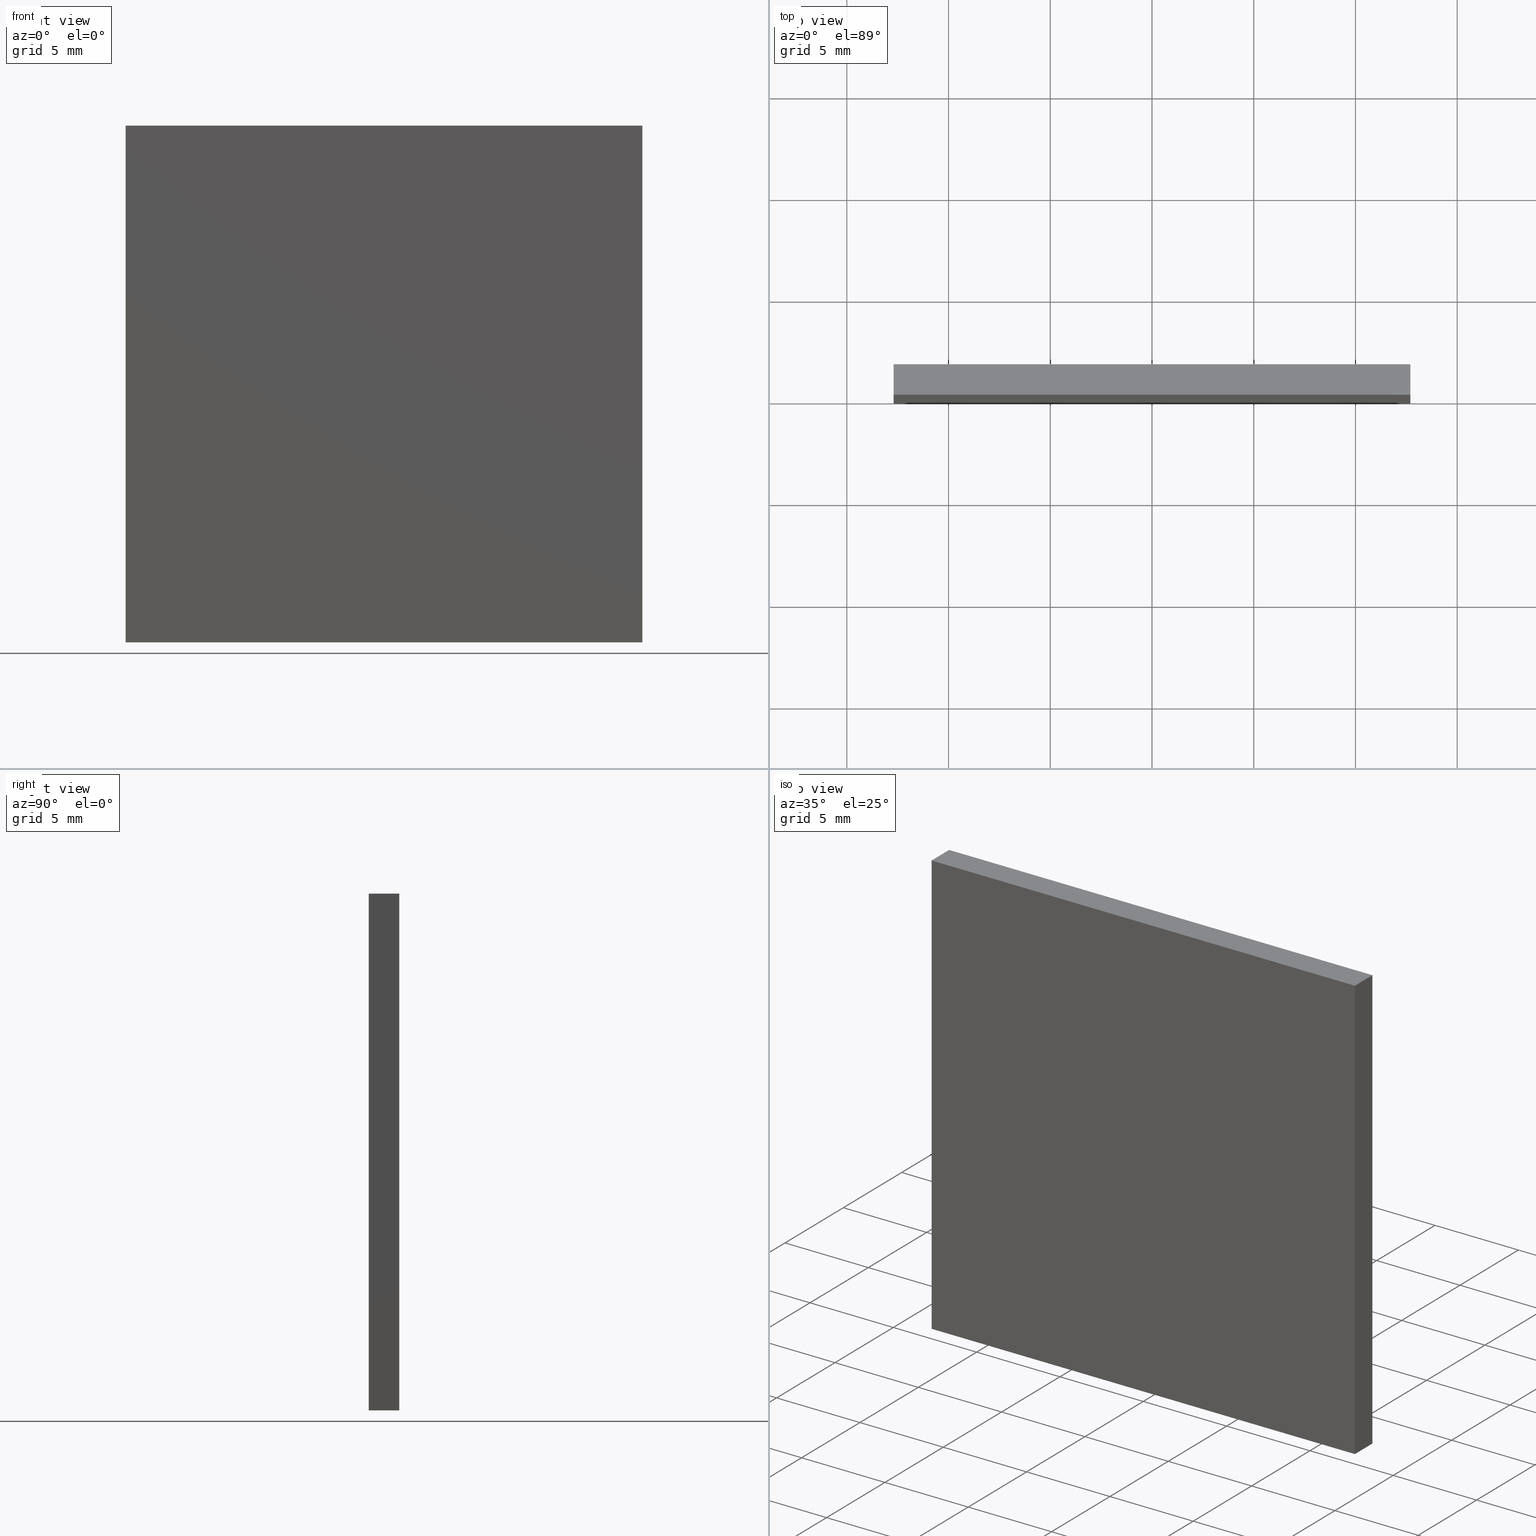
[diagram: canonical four-view strip — front | top / right | iso, engineering-drawing reading convention]
A machine part, canonical four-view strip (front | top / right | iso — engineering-drawing reading convention). The complete STEP part file that produces these views, byte-faithful:
ISO-10303-21;
HEADER;
FILE_DESCRIPTION (( 'STEP AP214' ),
    '1' );
FILE_NAME ('350503.STEP',
    '2019-08-14T06:00:49',
    ( 'user' ),
    ( '΢���й�' ),
    'SwSTEP 2.0',
    'SolidWorks 2016',
    '' );
FILE_SCHEMA (( 'AUTOMOTIVE_DESIGN' ));
ENDSEC;

DATA;
#1 = CARTESIAN_POINT ( 'NONE',  ( -12.70000000000000100, 0.0000000000000000000, -12.69999999999999800 ) ) ;
#2 = CARTESIAN_POINT ( 'NONE',  ( 0.0000000000000000000, 1.500000000000000000, 0.0000000000000000000 ) ) ;
#3 = ORIENTED_EDGE ( 'NONE', *, *, #194, .F. ) ;
#4 = CARTESIAN_POINT ( 'NONE',  ( -12.70000000000000100, 1.500000000000000000, 12.69999999999999900 ) ) ;
#5 = ORIENTED_EDGE ( 'NONE', *, *, #194, .T. ) ;
#6 = VERTEX_POINT ( 'NONE', #64 ) ;
#7 = LINE ( 'NONE', #185, #176 ) ;
#8 = MECHANICAL_DESIGN_GEOMETRIC_PRESENTATION_REPRESENTATION (  '', ( #195 ), #20 ) ;
#9 = PRODUCT_DEFINITION ( 'δ֪', '', #22, #43 ) ;
#10 = EDGE_LOOP ( 'NONE', ( #178, #179, #180, #52 ) ) ;
#11 = VERTEX_POINT ( 'NONE', #111 ) ;
#12 = CARTESIAN_POINT ( 'NONE',  ( 12.69999999999999800, 0.0000000000000000000, 12.69999999999999900 ) ) ;
#13 = EDGE_CURVE ( 'NONE', #11, #41, #93, .T. ) ;
#14 = PRODUCT_CONTEXT ( 'NONE', #34, 'mechanical' ) ;
#15 = PRESENTATION_STYLE_ASSIGNMENT (( #85 ) ) ;
#16 =( NAMED_UNIT ( * ) SI_UNIT ( $, .STERADIAN. ) SOLID_ANGLE_UNIT ( ) );
#17 = LINE ( 'NONE', #21, #79 ) ;
#18 = DIRECTION ( 'NONE',  ( -1.000000000000000000, -0.0000000000000000000, -0.0000000000000000000 ) ) ;
#19 = CARTESIAN_POINT ( 'NONE',  ( -12.70000000000000100, 1.500000000000000000, -12.69999999999999800 ) ) ;
#20 =( GEOMETRIC_REPRESENTATION_CONTEXT ( 3 ) GLOBAL_UNCERTAINTY_ASSIGNED_CONTEXT ( ( #196 ) ) GLOBAL_UNIT_ASSIGNED_CONTEXT ( ( #182, #73, #162 ) ) REPRESENTATION_CONTEXT ( 'NONE', 'WORKASPACE' ) );
#21 = CARTESIAN_POINT ( 'NONE',  ( 12.69999999999999800, 1.500000000000000000, -12.69999999999999800 ) ) ;
#22 = PRODUCT_DEFINITION_FORMATION_WITH_SPECIFIED_SOURCE ( '�κ�', '', #115, .NOT_KNOWN. ) ;
#23 = COLOUR_RGB ( '',1.000000000000000000, 1.000000000000000000, 1.000000000000000000 ) ;
#24 = FACE_OUTER_BOUND ( 'NONE', #193, .T. ) ;
#25 = LINE ( 'NONE', #67, #28 ) ;
#26 = ADVANCED_FACE ( 'NONE', ( #101 ), #49, .F. ) ;
#27 = CARTESIAN_POINT ( 'NONE',  ( 12.69999999999999800, 1.500000000000000000, -12.69999999999999800 ) ) ;
#28 = VECTOR ( 'NONE', #157, 1000.000000000000000 ) ;
#29 = PLANE ( 'NONE',  #70 ) ;
#30 = DIRECTION ( 'NONE',  ( 0.0000000000000000000, 0.0000000000000000000, -1.000000000000000000 ) ) ;
#31 = MANIFOLD_SOLID_BREP ( '͹̨-����1', #42 ) ;
#32 = PRODUCT_RELATED_PRODUCT_CATEGORY ( 'part', '', ( #115 ) ) ;
#33 = EDGE_LOOP ( 'NONE', ( #142, #197, #121, #202 ) ) ;
#34 = APPLICATION_CONTEXT ( 'automotive_design' ) ;
#35 = VERTEX_POINT ( 'NONE', #47 ) ;
#36 = VECTOR ( 'NONE', #150, 1000.000000000000000 ) ;
#37 = APPLICATION_CONTEXT ( 'automotive_design' ) ;
#38 = VECTOR ( 'NONE', #18, 1000.000000000000000 ) ;
#39 = EDGE_CURVE ( 'NONE', #35, #6, #109, .T. ) ;
#40 = DIRECTION ( 'NONE',  ( 0.0000000000000000000, 0.0000000000000000000, -1.000000000000000000 ) ) ;
#41 = VERTEX_POINT ( 'NONE', #27 ) ;
#42 = CLOSED_SHELL ( 'NONE', ( #26, #107, #81, #58, #175, #68 ) ) ;
#43 = PRODUCT_DEFINITION_CONTEXT ( 'detailed design', #37, 'design' ) ;
#44 = ORIENTED_EDGE ( 'NONE', *, *, #105, .F. ) ;
#45 = VERTEX_POINT ( 'NONE', #145 ) ;
#46 = DIRECTION ( 'NONE',  ( -1.000000000000000000, 0.0000000000000000000, -0.0000000000000000000 ) ) ;
#47 = CARTESIAN_POINT ( 'NONE',  ( 12.69999999999999800, 0.0000000000000000000, 12.69999999999999900 ) ) ;
#48 = PLANE ( 'NONE',  #84 ) ;
#49 = PLANE ( 'NONE',  #184 ) ;
#50 = ADVANCED_BREP_SHAPE_REPRESENTATION ( '350503', ( #31, #201 ), #110 ) ;
#51 = EDGE_CURVE ( 'NONE', #132, #200, #86, .T. ) ;
#52 = ORIENTED_EDGE ( 'NONE', *, *, #191, .T. ) ;
#53 = APPLICATION_PROTOCOL_DEFINITION ( 'draft international standard', 'automotive_design', 1998, #34 ) ;
#54 = SURFACE_STYLE_FILL_AREA ( #186 ) ;
#55 = DIRECTION ( 'NONE',  ( 0.0000000000000000000, -0.0000000000000000000, -1.000000000000000000 ) ) ;
#56 = DIRECTION ( 'NONE',  ( -0.0000000000000000000, -1.000000000000000000, -0.0000000000000000000 ) ) ;
#57 = AXIS2_PLACEMENT_3D ( 'NONE', #82, #143, #46 ) ;
#58 = ADVANCED_FACE ( 'NONE', ( #159 ), #94, .F. ) ;
#59 = SURFACE_STYLE_FILL_AREA ( #96 ) ;
#60 = LINE ( 'NONE', #102, #38 ) ;
#61 = DIRECTION ( 'NONE',  ( 0.0000000000000000000, 0.0000000000000000000, 1.000000000000000000 ) ) ;
#62 = CARTESIAN_POINT ( 'NONE',  ( 0.0000000000000000000, 0.0000000000000000000, 0.0000000000000000000 ) ) ;
#63 = ORIENTED_EDGE ( 'NONE', *, *, #156, .F. ) ;
#64 = CARTESIAN_POINT ( 'NONE',  ( 12.69999999999999800, 0.0000000000000000000, -12.69999999999999800 ) ) ;
#65 = ORIENTED_EDGE ( 'NONE', *, *, #92, .F. ) ;
#66 = DIRECTION ( 'NONE',  ( 0.0000000000000000000, -1.000000000000000000, 0.0000000000000000000 ) ) ;
#67 = CARTESIAN_POINT ( 'NONE',  ( -12.70000000000000100, 1.500000000000000000, -12.69999999999999800 ) ) ;
#68 = ADVANCED_FACE ( 'NONE', ( #155 ), #29, .T. ) ;
#69 = FACE_OUTER_BOUND ( 'NONE', #161, .T. ) ;
#70 = AXIS2_PLACEMENT_3D ( 'NONE', #62, #160, #124 ) ;
#71 = ORIENTED_EDGE ( 'NONE', *, *, #128, .T. ) ;
#72 = DIRECTION ( 'NONE',  ( -0.0000000000000000000, -1.000000000000000000, -0.0000000000000000000 ) ) ;
#73 =( NAMED_UNIT ( * ) PLANE_ANGLE_UNIT ( ) SI_UNIT ( $, .RADIAN. ) );
#74 = CARTESIAN_POINT ( 'NONE',  ( -12.70000000000000100, 1.500000000000000000, -12.69999999999999800 ) ) ;
#75 = DIRECTION ( 'NONE',  ( 0.0000000000000000000, 0.0000000000000000000, 1.000000000000000000 ) ) ;
#76 = ORIENTED_EDGE ( 'NONE', *, *, #147, .T. ) ;
#77 = PLANE ( 'NONE',  #120 ) ;
#78 = ORIENTED_EDGE ( 'NONE', *, *, #191, .F. ) ;
#79 = VECTOR ( 'NONE', #56, 1000.000000000000000 ) ;
#80 = EDGE_CURVE ( 'NONE', #11, #35, #144, .T. ) ;
#81 = ADVANCED_FACE ( 'NONE', ( #69 ), #48, .F. ) ;
#82 = CARTESIAN_POINT ( 'NONE',  ( -12.70000000000000100, 1.500000000000000000, 12.69999999999999900 ) ) ;
#83 = SURFACE_STYLE_USAGE ( .BOTH. , #199 ) ;
#84 = AXIS2_PLACEMENT_3D ( 'NONE', #146, #163, #40 ) ;
#85 = SURFACE_STYLE_USAGE ( .BOTH. , #99 ) ;
#86 = LINE ( 'NONE', #123, #183 ) ;
#87 = EDGE_CURVE ( 'NONE', #132, #45, #190, .T. ) ;
#88 = DIRECTION ( 'NONE',  ( -0.0000000000000000000, -0.0000000000000000000, 1.000000000000000000 ) ) ;
#89 = ORIENTED_EDGE ( 'NONE', *, *, #87, .T. ) ;
#90 = LINE ( 'NONE', #113, #125 ) ;
#91 = VECTOR ( 'NONE', #127, 1000.000000000000000 ) ;
#92 = EDGE_CURVE ( 'NONE', #200, #141, #104, .T. ) ;
#93 = LINE ( 'NONE', #97, #126 ) ;
#94 = PLANE ( 'NONE',  #57 ) ;
#95 = LINE ( 'NONE', #133, #135 ) ;
#96 = FILL_AREA_STYLE ('',( #138 ) ) ;
#97 = CARTESIAN_POINT ( 'NONE',  ( 12.69999999999999800, 1.500000000000000000, 12.69999999999999900 ) ) ;
#98 = DIRECTION ( 'NONE',  ( 1.000000000000000000, 0.0000000000000000000, 0.0000000000000000000 ) ) ;
#99 = SURFACE_SIDE_STYLE ('',( #54 ) ) ;
#100 =( LENGTH_UNIT ( ) NAMED_UNIT ( * ) SI_UNIT ( .MILLI., .METRE. ) );
#101 = FACE_OUTER_BOUND ( 'NONE', #33, .T. ) ;
#102 = CARTESIAN_POINT ( 'NONE',  ( -12.70000000000000100, 0.0000000000000000000, -12.69999999999999800 ) ) ;
#103 = DIRECTION ( 'NONE',  ( 1.000000000000000000, 0.0000000000000000000, 0.0000000000000000000 ) ) ;
#104 = LINE ( 'NONE', #116, #36 ) ;
#105 = EDGE_CURVE ( 'NONE', #41, #132, #25, .T. ) ;
#106 = AXIS2_PLACEMENT_3D ( 'NONE', #74, #61, #139 ) ;
#107 = ADVANCED_FACE ( 'NONE', ( #168 ), #174, .F. ) ;
#108 = DIRECTION ( 'NONE',  ( 0.0000000000000000000, 0.0000000000000000000, -1.000000000000000000 ) ) ;
#109 = LINE ( 'NONE', #12, #117 ) ;
#110 =( GEOMETRIC_REPRESENTATION_CONTEXT ( 3 ) GLOBAL_UNCERTAINTY_ASSIGNED_CONTEXT ( ( #173 ) ) GLOBAL_UNIT_ASSIGNED_CONTEXT ( ( #153, #167, #16 ) ) REPRESENTATION_CONTEXT ( 'NONE', 'WORKASPACE' ) );
#111 = CARTESIAN_POINT ( 'NONE',  ( 12.69999999999999800, 1.500000000000000000, 12.69999999999999900 ) ) ;
#112 = ORIENTED_EDGE ( 'NONE', *, *, #87, .F. ) ;
#113 = CARTESIAN_POINT ( 'NONE',  ( -12.70000000000000100, 0.0000000000000000000, 12.69999999999999900 ) ) ;
#114 = DIRECTION ( 'NONE',  ( -1.000000000000000000, 0.0000000000000000000, 0.0000000000000000000 ) ) ;
#115 = PRODUCT ( '350503', '350503', '', ( #14 ) ) ;
#116 = CARTESIAN_POINT ( 'NONE',  ( -12.70000000000000100, 0.0000000000000000000, 12.69999999999999900 ) ) ;
#117 = VECTOR ( 'NONE', #108, 1000.000000000000000 ) ;
#118 = PRESENTATION_STYLE_ASSIGNMENT (( #83 ) ) ;
#119 = PRESENTATION_LAYER_ASSIGNMENT (  '', '', ( #195 ) ) ;
#120 = AXIS2_PLACEMENT_3D ( 'NONE', #2, #66, #55 ) ;
#121 = ORIENTED_EDGE ( 'NONE', *, *, #13, .F. ) ;
#122 = ORIENTED_EDGE ( 'NONE', *, *, #51, .T. ) ;
#123 = CARTESIAN_POINT ( 'NONE',  ( -12.70000000000000100, 1.500000000000000000, -12.69999999999999800 ) ) ;
#124 = DIRECTION ( 'NONE',  ( 0.0000000000000000000, -0.0000000000000000000, -1.000000000000000000 ) ) ;
#125 = VECTOR ( 'NONE', #189, 1000.000000000000000 ) ;
#126 = VECTOR ( 'NONE', #30, 1000.000000000000000 ) ;
#127 = DIRECTION ( 'NONE',  ( -0.0000000000000000000, -1.000000000000000000, -0.0000000000000000000 ) ) ;
#128 = EDGE_CURVE ( 'NONE', #41, #6, #17, .T. ) ;
#129 = UNCERTAINTY_MEASURE_WITH_UNIT (LENGTH_MEASURE( 1.000000000000000100E-005 ), #100, 'distance_accuracy_value', 'NONE');
#130 = ORIENTED_EDGE ( 'NONE', *, *, #13, .T. ) ;
#131 = CARTESIAN_POINT ( 'NONE',  ( 12.69999999999999800, 1.500000000000000000, 12.69999999999999900 ) ) ;
#132 = VERTEX_POINT ( 'NONE', #19 ) ;
#133 = CARTESIAN_POINT ( 'NONE',  ( -12.70000000000000100, 1.500000000000000000, 12.69999999999999900 ) ) ;
#134 = CARTESIAN_POINT ( 'NONE',  ( -12.70000000000000100, 0.0000000000000000000, 12.69999999999999900 ) ) ;
#135 = VECTOR ( 'NONE', #170, 1000.000000000000000 ) ;
#136 = VECTOR ( 'NONE', #88, 1000.000000000000000 ) ;
#137 = APPLICATION_PROTOCOL_DEFINITION ( 'draft international standard', 'automotive_design', 1998, #37 ) ;
#138 = FILL_AREA_STYLE_COLOUR ( '', #172 ) ;
#139 = DIRECTION ( 'NONE',  ( 1.000000000000000000, 0.0000000000000000000, -0.0000000000000000000 ) ) ;
#140 = PRESENTATION_LAYER_ASSIGNMENT (  '', '', ( #149 ) ) ;
#141 = VERTEX_POINT ( 'NONE', #134 ) ;
#142 = ORIENTED_EDGE ( 'NONE', *, *, #39, .T. ) ;
#143 = DIRECTION ( 'NONE',  ( 0.0000000000000000000, 0.0000000000000000000, -1.000000000000000000 ) ) ;
#144 = LINE ( 'NONE', #181, #91 ) ;
#145 = CARTESIAN_POINT ( 'NONE',  ( -12.70000000000000100, 1.500000000000000000, 12.69999999999999900 ) ) ;
#146 = CARTESIAN_POINT ( 'NONE',  ( -12.70000000000000100, 1.500000000000000000, 12.69999999999999900 ) ) ;
#147 = EDGE_CURVE ( 'NONE', #45, #11, #7, .T. ) ;
#148 = PRODUCT_DEFINITION_SHAPE ( 'NONE', 'NONE',  #9 ) ;
#149 = STYLED_ITEM ( 'NONE', ( #15 ), #50 ) ;
#150 = DIRECTION ( 'NONE',  ( -0.0000000000000000000, -0.0000000000000000000, 1.000000000000000000 ) ) ;
#151 = ORIENTED_EDGE ( 'NONE', *, *, #92, .T. ) ;
#152 =( NAMED_UNIT ( * ) PLANE_ANGLE_UNIT ( ) SI_UNIT ( $, .RADIAN. ) );
#153 =( LENGTH_UNIT ( ) NAMED_UNIT ( * ) SI_UNIT ( .MILLI., .METRE. ) );
#154 = FILL_AREA_STYLE_COLOUR ( '', #23 ) ;
#155 = FACE_OUTER_BOUND ( 'NONE', #177, .T. ) ;
#156 = EDGE_CURVE ( 'NONE', #141, #35, #90, .T. ) ;
#157 = DIRECTION ( 'NONE',  ( -1.000000000000000000, -0.0000000000000000000, -0.0000000000000000000 ) ) ;
#158 = MECHANICAL_DESIGN_GEOMETRIC_PRESENTATION_REPRESENTATION (  '', ( #149 ), #164 ) ;
#159 = FACE_OUTER_BOUND ( 'NONE', #10, .T. ) ;
#160 = DIRECTION ( 'NONE',  ( 0.0000000000000000000, -1.000000000000000000, 0.0000000000000000000 ) ) ;
#161 = EDGE_LOOP ( 'NONE', ( #151, #78, #112, #122 ) ) ;
#162 =( NAMED_UNIT ( * ) SI_UNIT ( $, .STERADIAN. ) SOLID_ANGLE_UNIT ( ) );
#163 = DIRECTION ( 'NONE',  ( 1.000000000000000000, -0.0000000000000000000, 0.0000000000000000000 ) ) ;
#164 =( GEOMETRIC_REPRESENTATION_CONTEXT ( 3 ) GLOBAL_UNCERTAINTY_ASSIGNED_CONTEXT ( ( #129 ) ) GLOBAL_UNIT_ASSIGNED_CONTEXT ( ( #100, #152, #187 ) ) REPRESENTATION_CONTEXT ( 'NONE', 'WORKASPACE' ) );
#165 = ORIENTED_EDGE ( 'NONE', *, *, #51, .F. ) ;
#166 = CARTESIAN_POINT ( 'NONE',  ( 0.0000000000000000000, 0.0000000000000000000, 0.0000000000000000000 ) ) ;
#167 =( NAMED_UNIT ( * ) PLANE_ANGLE_UNIT ( ) SI_UNIT ( $, .RADIAN. ) );
#168 = FACE_OUTER_BOUND ( 'NONE', #169, .T. ) ;
#169 = EDGE_LOOP ( 'NONE', ( #5, #165, #44, #71 ) ) ;
#170 = DIRECTION ( 'NONE',  ( -0.0000000000000000000, -1.000000000000000000, -0.0000000000000000000 ) ) ;
#171 = SHAPE_DEFINITION_REPRESENTATION ( #148, #50 ) ;
#172 = COLOUR_RGB ( '',1.000000000000000000, 1.000000000000000000, 1.000000000000000000 ) ;
#173 = UNCERTAINTY_MEASURE_WITH_UNIT (LENGTH_MEASURE( 1.000000000000000100E-005 ), #153, 'distance_accuracy_value', 'NONE');
#174 = PLANE ( 'NONE',  #106 ) ;
#175 = ADVANCED_FACE ( 'NONE', ( #24 ), #77, .F. ) ;
#176 = VECTOR ( 'NONE', #103, 1000.000000000000000 ) ;
#177 = EDGE_LOOP ( 'NONE', ( #188, #63, #65, #3 ) ) ;
#178 = ORIENTED_EDGE ( 'NONE', *, *, #156, .T. ) ;
#179 = ORIENTED_EDGE ( 'NONE', *, *, #80, .F. ) ;
#180 = ORIENTED_EDGE ( 'NONE', *, *, #147, .F. ) ;
#181 = CARTESIAN_POINT ( 'NONE',  ( 12.69999999999999800, 1.500000000000000000, 12.69999999999999900 ) ) ;
#182 =( LENGTH_UNIT ( ) NAMED_UNIT ( * ) SI_UNIT ( .MILLI., .METRE. ) );
#183 = VECTOR ( 'NONE', #72, 1000.000000000000000 ) ;
#184 = AXIS2_PLACEMENT_3D ( 'NONE', #131, #114, #198 ) ;
#185 = CARTESIAN_POINT ( 'NONE',  ( -12.70000000000000100, 1.500000000000000000, 12.69999999999999900 ) ) ;
#186 = FILL_AREA_STYLE ('',( #154 ) ) ;
#187 =( NAMED_UNIT ( * ) SI_UNIT ( $, .STERADIAN. ) SOLID_ANGLE_UNIT ( ) );
#188 = ORIENTED_EDGE ( 'NONE', *, *, #39, .F. ) ;
#189 = DIRECTION ( 'NONE',  ( 1.000000000000000000, 0.0000000000000000000, 0.0000000000000000000 ) ) ;
#190 = LINE ( 'NONE', #4, #136 ) ;
#191 = EDGE_CURVE ( 'NONE', #45, #141, #95, .T. ) ;
#192 = ORIENTED_EDGE ( 'NONE', *, *, #105, .T. ) ;
#193 = EDGE_LOOP ( 'NONE', ( #130, #192, #89, #76 ) ) ;
#194 = EDGE_CURVE ( 'NONE', #6, #200, #60, .T. ) ;
#195 = STYLED_ITEM ( 'NONE', ( #118 ), #31 ) ;
#196 = UNCERTAINTY_MEASURE_WITH_UNIT (LENGTH_MEASURE( 1.000000000000000100E-005 ), #182, 'distance_accuracy_value', 'NONE');
#197 = ORIENTED_EDGE ( 'NONE', *, *, #128, .F. ) ;
#198 = DIRECTION ( 'NONE',  ( 0.0000000000000000000, 0.0000000000000000000, 1.000000000000000000 ) ) ;
#199 = SURFACE_SIDE_STYLE ('',( #59 ) ) ;
#200 = VERTEX_POINT ( 'NONE', #1 ) ;
#201 = AXIS2_PLACEMENT_3D ( 'NONE', #166, #75, #98 ) ;
#202 = ORIENTED_EDGE ( 'NONE', *, *, #80, .T. ) ;
ENDSEC;
END-ISO-10303-21;
